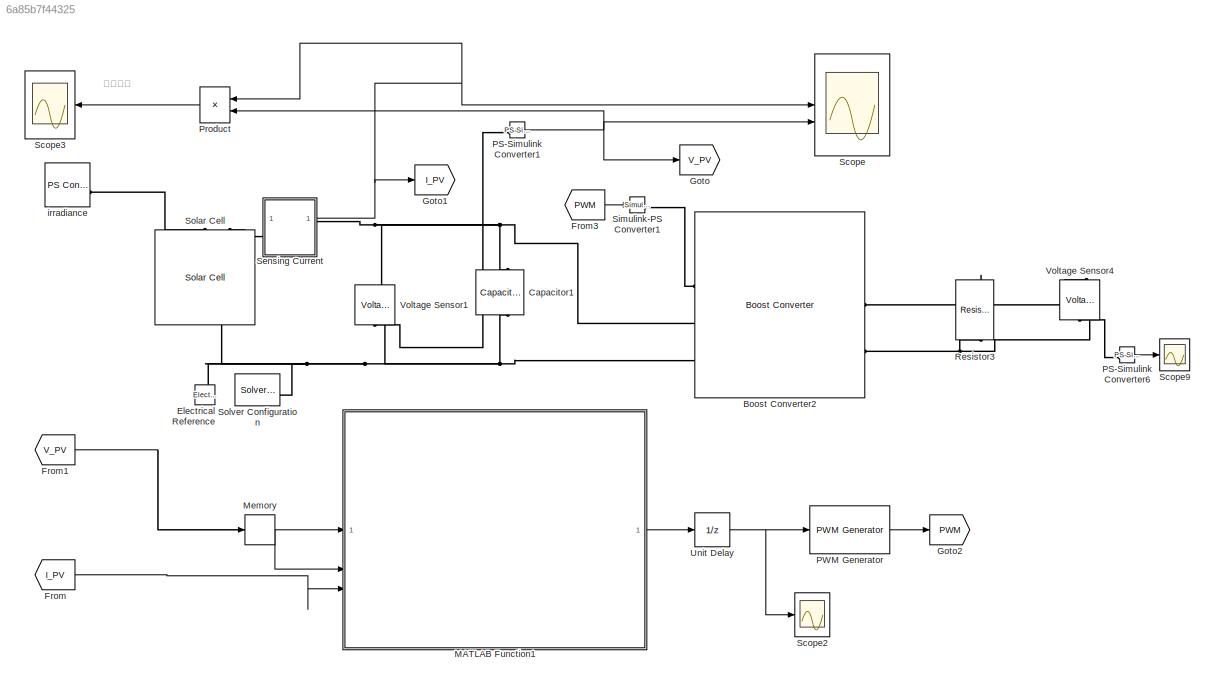
MODEL slx_6a85b7f44325
KIND model
CONFIG AbsTol = auto
CONFIG EnableMultiTasking = off
CONFIG FixedStep = auto
CONFIG MaxStep = auto
CONFIG MinStep = auto
CONFIG RelTol = 1e-3
CONFIG SampleTimeConstraint = Unconstrained
CONFIG SolverName = VariableStepAuto
CONFIG StartTime = 0.0
CONFIG StopTime = 1
BLOCK [Reference] Boost Converter2  REF=ee_lib/Semiconductors &
Converters/Converters/Boost Converter
  SourceBlock = ee_lib/Semiconductors &\nConverters/Converters/Boost Converter
  SourceType = Boost Converter
BLOCK [Reference] Capacitor1  REF=fl_lib/Electrical/Electrical Elements/Capacitor
  NameLocation = left
  SourceBlock = fl_lib/Electrical/Electrical Elements/Capacitor
  SourceType = Capacitor
BLOCK [Reference] Electrical Reference  REF=fl_lib/Electrical/Electrical Elements/Electrical Reference
  LibrarySourceBlock = ee_lib/Connectors &\nReferences/Electrical Reference
  NameLocation = right
  SourceBlock = fl_lib/Electrical/Electrical Elements/Electrical Reference
  SourceType = Electrical Reference
BLOCK [From] From
  GotoTag = I_PV
BLOCK [From] From1
  GotoTag = V_PV
BLOCK [From] From3
  GotoTag = PWM
BLOCK [Goto] Goto
  GotoTag = V_PV
BLOCK [Goto] Goto1
  GotoTag = I_PV
BLOCK [Goto] Goto2
  GotoTag = PWM
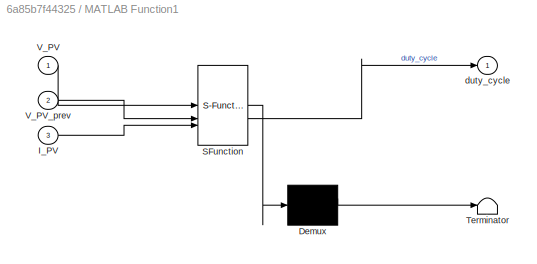
BLOCK [SubSystem] MATLAB Function1
  ErrorFcn = Stateflow.Translate.translate
  PermitHierarchicalResolution = ExplicitOnly
  SFBlockType = MATLAB Function
  TreatAsAtomicUnit = on
BLOCK [Demux] MATLAB Function1/ Demux 
  Outputs = 1
BLOCK [S-Function] MATLAB Function1/ SFunction 
  EnableBusSupport = off
  FunctionName = sf_sfun
  PortCounts = [3 2]
  SFcnIsStateOwnerBlock = off
  SFunctionDeploymentMode = off
  Tag = Stateflow S-Function 1
BLOCK [Terminator] MATLAB Function1/ Terminator 
BLOCK [Inport] MATLAB Function1/I_PV
  Port = 3
BLOCK [Inport] MATLAB Function1/V_PV
BLOCK [Inport] MATLAB Function1/V_PV_prev
  Port = 2
BLOCK [Outport] MATLAB Function1/duty_cycle
BLOCK [Memory] Memory
BLOCK [Reference] PS-Simulink Converter1  REF=nesl_utility/PS-Simulink
Converter
  SourceBlock = nesl_utility/PS-Simulink\nConverter
  SourceType = PS-Simulink\nConverter
BLOCK [Reference] PS-Simulink Converter6  REF=nesl_utility/PS-Simulink
Converter
  SourceBlock = nesl_utility/PS-Simulink\nConverter
  SourceType = PS-Simulink\nConverter
BLOCK [Reference] PWM Generator  REF=eePwmGenerator/PWM Generator
  LibrarySourceBlock = ee_sl_lib/Pulse Width\nModulation/PWM Generator
  NameLocation = top
  SourceBlock = eePwmGenerator/PWM Generator
  SourceType = PWM Generator
BLOCK [Product] Product
  NameLocation = top
BLOCK [Reference] Resistor3  REF=fl_lib/Electrical/Electrical Elements/Resistor
  NameLocation = top
  SourceBlock = fl_lib/Electrical/Electrical Elements/Resistor
  SourceType = Resistor
BLOCK [Scope] Scope
  ActiveDisplayYMaximum = 39.473392086748923
  ActiveDisplayYMinimum = 24.39781277182891
  DataLoggingVariableName = ScopeData2
  Floating = off
  GraphicalSettings = {"AxesScalingProperties":{"AlignXAxis":"Center","AlignYAxis":"Center","AutoScaleXAxisLimits":false,"AxesScaling":"Manual","AxesScalingNumUpdates":10,"ExpandOnly":true,"ScaleAxesLimitsAtStop":false,"XAxisDataRange":100,"YAxisDataRange":80},"DisplayProperties":{"ColorOrder":["auto","auto","auto","auto","auto","auto","auto","auto","auto","auto","auto","auto","auto","auto","auto","auto","auto","auto",...<+2161ch>
  MultipleDisplayCache = [{"MaxYLimMag":332.00652,"MaxYLimReal":39.473392086748923,"MinYLimMag":44.55949,"MinYLimReal":24.39781277182891,"PlotAsMagnitudePhase":false,"ShowGrid":true,"ShowLegend":true,"Title":"%<SignalLabel>","YLabel":""}]
  NumInputPorts = 2
  ScopeFrameLocation = window
  ShowLegend = on
  WasSavedAsWebScope = on
  WindowPosition = [850.000000,189.000000,560.000000,420.000000,]
BLOCK [Scope] Scope2
  ActiveDisplayYMaximum = 0.095774572008944958
  ActiveDisplayYMinimum = -0.01734267158820723
  Floating = off
  GraphicalSettings = {"Style":{"BackgroundColor":[0.12941176470588237,0.12941176470588237,0.12941176470588237],"AxesColor":[0.07058823529411765,0.07058823529411765,0.07058823529411765],"LabelsColor":[0.8509803921568627,0.8509803921568627,0.8509803921568627],"PreserveColors":false,"Visible":[true],"LineStyle":["-"],"LineWidth":[1.5],"BarWidth":[0.9],"LineColor":["auto"],"LineFaceAlpha":[1],"LineEdgeAlpha":[1],"Marker":...<+2009ch>
  MultipleDisplayCache = [{"MaxYLimMag":3.3318494248630763,"MaxYLimReal":0.095774572008944958,"MinYLimMag":0,"MinYLimReal":-0.01734267158820723,"PlotAsMagnitudePhase":false,"ShowGrid":true,"ShowLegend":false,"Title":"%<SignalLabel>","YLabel":""}]
  NameLocation = top
  NumInputPorts = 1
  OpenAtSimulationStart = on
  ScopeFrameLocation = window
  WasSavedAsWebScope = on
  WindowPosition = [508.000000,338.000000,418.000000,308.000000,]
BLOCK [Scope] Scope3
  ActiveDisplayYMaximum = 1464.5082069813716
  ActiveDisplayYMinimum = 1094.0682069813674
  ContainerLayout = {"WindowBounds":[179,155,803,639]}
  DataLoggingVariableName = ScopeData1
  Floating = off
  GraphicalSettings = {"Style":{"BackgroundColor":[0.12941176470588237,0.12941176470588237,0.12941176470588237],"AxesColor":[0.07058823529411765,0.07058823529411765,0.07058823529411765],"LabelsColor":[0.8509803921568627,0.8509803921568627,0.8509803921568627],"PreserveColors":false,"Visible":[true],"LineStyle":["-"],"LineWidth":[1.5],"BarWidth":[0.9],"LineColor":["auto"],"LineFaceAlpha":[1],"LineEdgeAlpha":[1],"Marker":...<+1983ch>
  MultipleDisplayCache = [{"MaxYLimMag":1198.89321,"MaxYLimReal":1464.5082069813716,"MinYLimMag":0,"MinYLimReal":1094.0682069813674,"PlotAsMagnitudePhase":false,"ShowGrid":true,"ShowLegend":false,"Title":"%<SignalLabel>","YLabel":""}]
  NameLocation = top
  NumInputPorts = 1
  ScopeFrameLocation = container
  Visible = on
  WasSavedAsWebScope = on
  WindowPosition = [187.000000,174.000000,788.000000,601.000000,]
BLOCK [Scope] Scope9
  ActiveDisplayYMaximum = 89.977855479510993
  ActiveDisplayYMinimum = -2.1924635461181694
  DataLoggingVariableName = ScopeData9
  Floating = off
  GraphicalSettings = {"Style":{"BackgroundColor":[0.12941176470588237,0.12941176470588237,0.12941176470588237],"AxesColor":[0.07058823529411765,0.07058823529411765,0.07058823529411765],"LabelsColor":[0.8509803921568627,0.8509803921568627,0.8509803921568627],"PreserveColors":false,"Visible":[true],"LineStyle":["-"],"LineWidth":[1.5],"BarWidth":[0.9],"LineColor":["auto"],"LineFaceAlpha":[1],"LineEdgeAlpha":[1],"Marker":...<+2009ch>
  MultipleDisplayCache = [{"MaxYLimMag":78.47429,"MaxYLimReal":89.977855479510993,"MinYLimMag":0,"MinYLimReal":-2.1924635461181694,"PlotAsMagnitudePhase":false,"ShowGrid":true,"ShowLegend":false,"Title":"%<SignalLabel>","YLabel":""}]
  NumInputPorts = 1
  ScopeFrameLocation = window
  WasSavedAsWebScope = on
  WindowPosition = [969.000000,277.000000,566.000000,449.000000,]
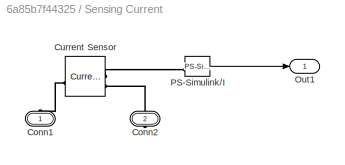
BLOCK [SubSystem] Sensing Current
BLOCK [PMIOPort] Sensing Current/Conn1
  NameLocation = right
  Side = Left
BLOCK [PMIOPort] Sensing Current/Conn2
  NameLocation = right
  Port = 2
  Side = Right
BLOCK [Reference] Sensing Current/Current Sensor  REF=fl_lib/Electrical/Electrical Sensors/Current Sensor
  SourceBlock = fl_lib/Electrical/Electrical Sensors/Current Sensor
  SourceType = Current Sensor
BLOCK [Outport] Sensing Current/Out1
  VectorParamsAs1DForOutWhenUnconnected = off
BLOCK [Reference] Sensing Current/PS-Simulink//I  REF=nesl_utility/PS-Simulink
Converter
  SourceBlock = nesl_utility/PS-Simulink\nConverter
  SourceType = PS-Simulink\nConverter
BLOCK [Reference] Simulink-PS Converter1  REF=nesl_utility/Simulink-PS
Converter
  SourceBlock = nesl_utility/Simulink-PS\nConverter
  SourceType = Simulink-PS\nConverter
BLOCK [Reference] Solar Cell  REF=ee_lib/Sources/Solar Cell
  NameLocation = right
  SourceBlock = ee_lib/Sources/Solar Cell
  SourceType = Solar Cell
BLOCK [Reference] Solver Configuration  REF=nesl_utility/Solver
Configuration
  SourceBlock = nesl_utility/Solver\nConfiguration
  SourceType = Solver\nConfiguration
BLOCK [UnitDelay] Unit Delay
  HasFrameUpgradeWarning = on
  SampleTime = -1
BLOCK [Reference] Voltage Sensor1  REF=fl_lib/Electrical/Electrical Sensors/Voltage Sensor
  NameLocation = right
  SourceBlock = fl_lib/Electrical/Electrical Sensors/Voltage Sensor
  SourceType = Voltage Sensor
BLOCK [Reference] Voltage Sensor4  REF=fl_lib/Electrical/Electrical Sensors/Voltage Sensor
  NameLocation = right
  SourceBlock = fl_lib/Electrical/Electrical Sensors/Voltage Sensor
  SourceType = Voltage Sensor
BLOCK [Reference] irradiance  REF=fl_lib/Physical Signals/Sources/PS Constant
  SourceBlock = fl_lib/Physical Signals/Sources/PS Constant
  SourceType = PS Constant
ANNOTATION (root): 功率追踪
NET From1:1 -> MATLAB Function1:1, Memory:1
LINE From3:1 -> Simulink-PS Converter1:1
LINE From:1 -> MATLAB Function1:3
LINE MATLAB Function1:1 -> Unit Delay:1
LINE Memory:1 -> MATLAB Function1:2
NET PS-Simulink Converter1:1 -> Goto:1, Product:2, Scope:2
LINE PS-Simulink Converter6:1 -> Scope9:1
LINE PWM Generator:1 -> Goto2:1
LINE Product:1 -> Scope3:1
LINE Sensing Current/PS-Simulink//I:1 -> Sensing Current/Out1:1
NET Sensing Current:1 -> Goto1:1, Product:1, Scope:1
NET Unit Delay:1 -> PWM Generator:1, Scope2:1
PLINE Boost Converter2:LConn1 -- Simulink-PS Converter1:RConn1
PNET net1: Boost Converter2:LConn2 -- Capacitor1:LConn1 -- Sensing Current:RConn1 -- Voltage Sensor1:LConn1
PNET net2: Boost Converter2:LConn3 -- Capacitor1:RConn1 -- Electrical Reference:LConn1 -- Solar Cell:RConn1 -- Solver Configuration:RConn1 -- Voltage Sensor1:RConn2
PNET net3: Boost Converter2:RConn1 -- Resistor3:RConn1 -- Voltage Sensor4:LConn1
PNET net4: Boost Converter2:RConn2 -- Resistor3:LConn1 -- Voltage Sensor4:RConn2
PLINE PS-Simulink Converter1:LConn1 -- Voltage Sensor1:RConn1
PLINE PS-Simulink Converter6:LConn1 -- Voltage Sensor4:RConn1
PLINE Sensing Current/Conn1:RConn1 -- Sensing Current/Current Sensor:LConn1
PLINE Sensing Current/Conn2:RConn1 -- Sensing Current/Current Sensor:RConn2
PLINE Sensing Current/Current Sensor:RConn1 -- Sensing Current/PS-Simulink//I:LConn1
PLINE Sensing Current:LConn1 -- Solar Cell:LConn2
PLINE Solar Cell:LConn1 -- irradiance:RConn1
note: NET lines group one-source signal fan-out (src -> all destinations, sorted); 1:1 wires keep LINE; PNET lines group multi-terminal physical nets as a canonical sorted terminal list (undirected conserving connections); 2-terminal nets keep the pairwise PLINE form
CHART MATLAB Function1 states=1 transitions=1
  STATE_LABEL 'eML_blk_kernel()'
  STATE_LABEL 'SCRIPT:\nfunction duty_cycle = PandO_algorithm(V_PV,V_PV_prev, I_PV)\n% 扰动观察法I_PV\n% 光伏电池参数\n% 设置占空比限幅\nD_min = 0.05;\nD_max = 0.95;\nP_rated = 1015; % Pmpp大致数据\nP = V_PV * I_PV;\nnorm = P / P_rated;    % 0~1 的无量纲量\n\npersistent duty_k\n    if isempty(duty_k)\n        duty_k = 0.01;\n    end\n\ndV = abs(V_PV - V_PV_prev);\n    \n% 判断功率变化方向\nif norm < 0.5 % 离Pmpp远\n    if dV > 0\n        step = 0.04 * (1 - norm); % 大功率...<+266ch>'
CHART  states=0 transitions=0
